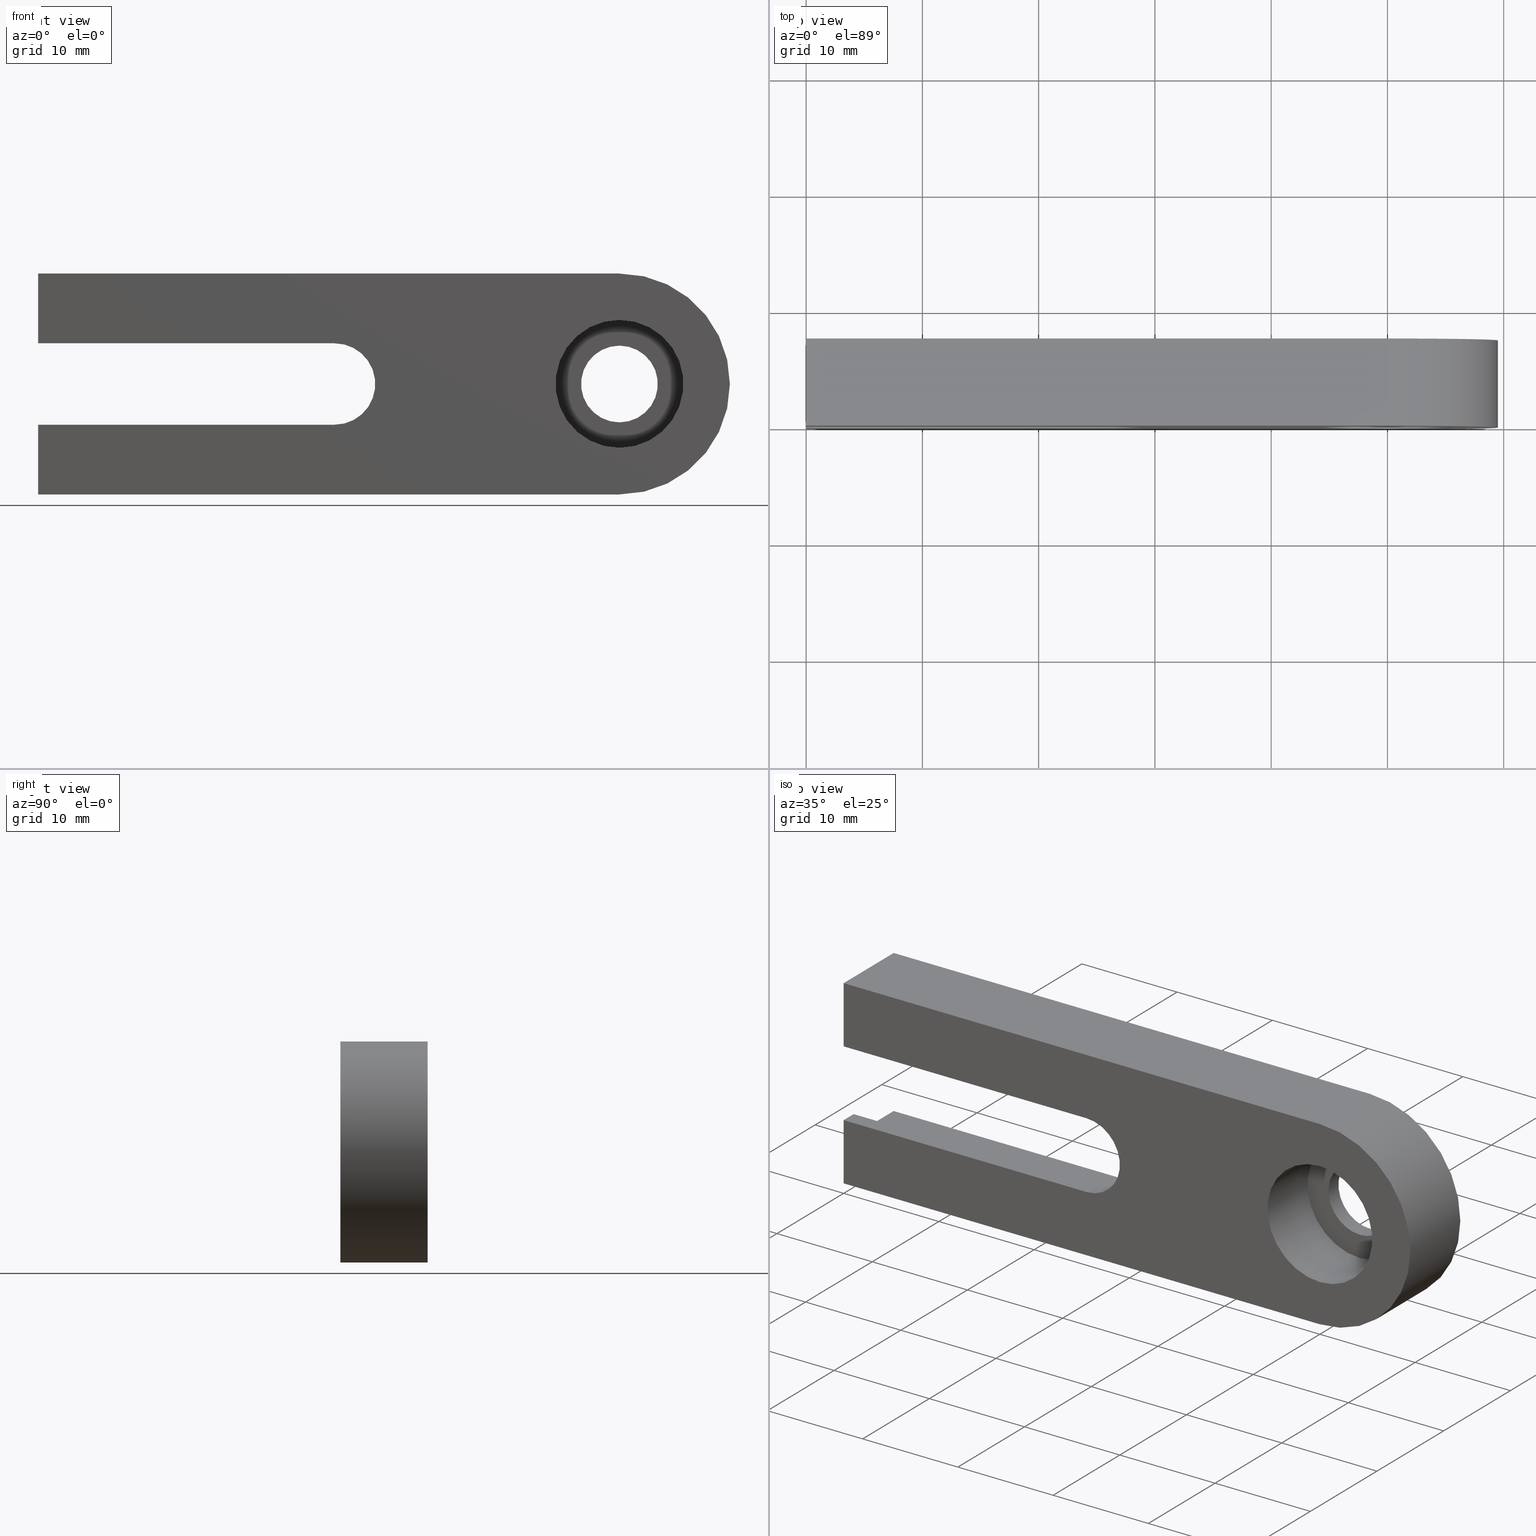
[diagram: canonical four-view strip — front | top / right | iso, engineering-drawing reading convention]
A machine part, canonical four-view strip (front | top / right | iso — engineering-drawing reading convention). The complete STEP part file that produces these views, byte-faithful:
ISO-10303-21;
HEADER;
FILE_DESCRIPTION (( 'STEP AP203' ),
    '1' );
FILE_NAME ('52SDB-5(M).STEP',
    '2016-04-28T06:39:20',
    ( '' ),
    ( '' ),
    'SwSTEP 2.0',
    'SolidWorks 2016',
    '' );
FILE_SCHEMA (( 'CONFIG_CONTROL_DESIGN' ));
ENDSEC;

DATA;
#1 = CARTESIAN_POINT ( 'NONE',  ( -24.49999999999999600, 0.0000000000000000000, 3.469446951953614200E-015 ) ) ;
#2 = EDGE_CURVE ( 'NONE', #190, #643, #219, .T. ) ;
#3 = VERTEX_POINT ( 'NONE', #212 ) ;
#4 = CARTESIAN_POINT ( 'NONE',  ( 0.0000000000000000000, 0.0000000000000000000, 9.500000000000000000 ) ) ;
#5 = CARTESIAN_POINT ( 'NONE',  ( -24.49999999999999600, 0.0000000000000000000, -3.500000000000000000 ) ) ;
#6 = CYLINDRICAL_SURFACE ( 'NONE', #172, 3.299999999999998900 ) ;
#7 = FACE_OUTER_BOUND ( 'NONE', #413, .T. ) ;
#8 = CARTESIAN_POINT ( 'NONE',  ( -24.49999999999999600, 0.0000000000000000000, -3.500000000000000000 ) ) ;
#9 = APPLICATION_CONTEXT ( 'configuration controlled 3d designs of mechanical parts and assemblies' ) ;
#10 = ORIENTED_EDGE ( 'NONE', *, *, #412, .T. ) ;
#11 = DIRECTION ( 'NONE',  ( 0.0000000000000000000, -0.0000000000000000000, 1.000000000000000000 ) ) ;
#12 = DIRECTION ( 'NONE',  ( -1.000000000000000000, 0.0000000000000000000, 2.380993006242676300E-016 ) ) ;
#13 = ORIENTED_EDGE ( 'NONE', *, *, #491, .F. ) ;
#14 = EDGE_CURVE ( 'NONE', #119, #366, #376, .T. ) ;
#15 = DIRECTION ( 'NONE',  ( -0.0000000000000000000, -1.000000000000000000, -0.0000000000000000000 ) ) ;
#16 = CARTESIAN_POINT ( 'NONE',  ( -49.99999999999999300, 0.0000000000000000000, 9.500000000000000000 ) ) ;
#17 = CARTESIAN_POINT ( 'NONE',  ( 0.0000000000000000000, 4.336808689942017700E-016, 0.0000000000000000000 ) ) ;
#18 = ORIENTED_EDGE ( 'NONE', *, *, #426, .T. ) ;
#19 = EDGE_LOOP ( 'NONE', ( #536, #10, #553, #422, #135, #131 ) ) ;
#20 = EDGE_LOOP ( 'NONE', ( #585, #206, #526, #145 ) ) ;
#21 = DIRECTION ( 'NONE',  ( 1.000000000000000000, 0.0000000000000000000, -0.0000000000000000000 ) ) ;
#22 = EDGE_LOOP ( 'NONE', ( #537, #581 ) ) ;
#23 = FACE_OUTER_BOUND ( 'NONE', #430, .T. ) ;
#24 = FACE_BOUND ( 'NONE', #284, .T. ) ;
#25 = DIRECTION ( 'NONE',  ( 0.0000000000000000000, 0.0000000000000000000, -1.000000000000000000 ) ) ;
#26 = EDGE_CURVE ( 'NONE', #366, #91, #338, .T. ) ;
#27 = ORIENTED_EDGE ( 'NONE', *, *, #482, .F. ) ;
#28 = CARTESIAN_POINT ( 'NONE',  ( 0.0000000000000000000, 0.0000000000000000000, 0.0000000000000000000 ) ) ;
#29 = ORIENTED_EDGE ( 'NONE', *, *, #434, .T. ) ;
#30 = DIRECTION ( 'NONE',  ( 0.0000000000000000000, 1.000000000000000000, 0.0000000000000000000 ) ) ;
#31 = CARTESIAN_POINT ( 'NONE',  ( 0.0000000000000000000, 0.0000000000000000000, 0.0000000000000000000 ) ) ;
#32 = LINE ( 'NONE', #106, #437 ) ;
#33 = FACE_OUTER_BOUND ( 'NONE', #273, .T. ) ;
#34 = ADVANCED_FACE ( 'NONE', ( #256 ), #615, .F. ) ;
#35 = CARTESIAN_POINT ( 'NONE',  ( 0.0000000000000000000, 7.500000000000000000, -9.500000000000000000 ) ) ;
#36 = ADVANCED_FACE ( 'NONE', ( #68 ), #107, .F. ) ;
#37 = ORIENTED_EDGE ( 'NONE', *, *, #252, .T. ) ;
#38 = LOCAL_TIME ( 14, 39, 20.00000000000000000, #379 ) ;
#39 = CARTESIAN_POINT ( 'NONE',  ( -49.99999999999999300, 7.500000000000000000, -9.500000000000000000 ) ) ;
#40 = EDGE_CURVE ( 'NONE', #119, #425, #355, .T. ) ;
#41 = VECTOR ( 'NONE', #406, 1000.000000000000000 ) ;
#42 = DIRECTION ( 'NONE',  ( -0.0000000000000000000, -1.000000000000000000, -0.0000000000000000000 ) ) ;
#43 = VERTEX_POINT ( 'NONE', #568 ) ;
#44 = ORIENTED_EDGE ( 'NONE', *, *, #482, .T. ) ;
#45 = DIRECTION ( 'NONE',  ( -0.0000000000000000000, 1.000000000000000000, -0.0000000000000000000 ) ) ;
#46 = AXIS2_PLACEMENT_3D ( 'NONE', #83, #447, #654 ) ;
#47 = ORIENTED_EDGE ( 'NONE', *, *, #163, .T. ) ;
#48 = LINE ( 'NONE', #651, #589 ) ;
#49 = LINE ( 'NONE', #84, #635 ) ;
#50 = CARTESIAN_POINT ( 'NONE',  ( 0.0000000000000000000, 7.500000000000000000, 9.500000000000000000 ) ) ;
#51 = EDGE_CURVE ( 'NONE', #643, #361, #363, .T. ) ;
#52 = ADVANCED_BREP_SHAPE_REPRESENTATION ( '52SDB-5(M)', ( #216, #544 ), #240 ) ;
#53 = CARTESIAN_POINT ( 'NONE',  ( -24.49999999999999600, 1.499999999999999600, 3.469446951953614200E-015 ) ) ;
#54 = DIRECTION ( 'NONE',  ( -1.000000000000000000, 0.0000000000000000000, 2.380993006242676300E-016 ) ) ;
#55 = CARTESIAN_POINT ( 'NONE',  ( -24.49999999999999600, 1.499999999999999600, -5.500000000000000000 ) ) ;
#56 = COORDINATED_UNIVERSAL_TIME_OFFSET ( 8, 0, .AHEAD. ) ;
#57 = LINE ( 'NONE', #251, #547 ) ;
#58 = DIRECTION ( 'NONE',  ( 0.0000000000000000000, 0.0000000000000000000, -1.000000000000000000 ) ) ;
#59 = CARTESIAN_POINT ( 'NONE',  ( -49.99999999999999300, 0.0000000000000000000, -3.499999999999993800 ) ) ;
#60 = DIRECTION ( 'NONE',  ( 0.0000000000000000000, -0.0000000000000000000, 1.000000000000000000 ) ) ;
#61 = DIRECTION ( 'NONE',  ( 0.0000000000000000000, 0.0000000000000000000, 1.000000000000000000 ) ) ;
#62 = DATE_TIME_ROLE ( 'creation_date' ) ;
#63 = EDGE_CURVE ( 'NONE', #102, #652, #374, .T. ) ;
#64 = ORIENTED_EDGE ( 'NONE', *, *, #40, .F. ) ;
#65 = DIRECTION ( 'NONE',  ( 1.000000000000000000, 0.0000000000000000000, 0.0000000000000000000 ) ) ;
#66 = CIRCLE ( 'NONE', #634, 5.500000000000000000 ) ;
#67 = ORIENTED_EDGE ( 'NONE', *, *, #163, .F. ) ;
#68 = FACE_OUTER_BOUND ( 'NONE', #286, .T. ) ;
#69 = AXIS2_PLACEMENT_3D ( 'NONE', #346, #281, #189 ) ;
#70 = APPROVAL_PERSON_ORGANIZATION ( #200, #440, #365 ) ;
#71 = EDGE_CURVE ( 'NONE', #345, #138, #271, .T. ) ;
#72 = CARTESIAN_POINT ( 'NONE',  ( -49.99999999999999300, 0.0000000000000000000, 3.500000000000006200 ) ) ;
#73 = CARTESIAN_POINT ( 'NONE',  ( 6.735557395310442000E-016, 6.000000000000000000, 5.500000000000000000 ) ) ;
#74 = AXIS2_PLACEMENT_3D ( 'NONE', #504, #296, #249 ) ;
#75 = CARTESIAN_POINT ( 'NONE',  ( -24.49999999999999600, 1.499999999999999600, 5.500000000000006200 ) ) ;
#76 = CYLINDRICAL_SURFACE ( 'NONE', #606, 5.500000000000003600 ) ;
#77 = ADVANCED_FACE ( 'NONE', ( #116 ), #523, .F. ) ;
#78 = FACE_OUTER_BOUND ( 'NONE', #486, .T. ) ;
#79 = PLANE ( 'NONE',  #622 ) ;
#80 = ADVANCED_FACE ( 'NONE', ( #657 ), #225, .T. ) ;
#81 = VECTOR ( 'NONE', #554, 1000.000000000000000 ) ;
#82 = DIRECTION ( 'NONE',  ( 1.000000000000000000, 0.0000000000000000000, 0.0000000000000000000 ) ) ;
#83 = CARTESIAN_POINT ( 'NONE',  ( 0.0000000000000000000, 7.499999999999999100, 0.0000000000000000000 ) ) ;
#84 = CARTESIAN_POINT ( 'NONE',  ( 0.0000000000000000000, 0.0000000000000000000, -5.500000000000000000 ) ) ;
#85 = EDGE_CURVE ( 'NONE', #457, #277, #49, .T. ) ;
#86 = DIRECTION ( 'NONE',  ( -1.000000000000000000, 0.0000000000000000000, 2.380993006242676300E-016 ) ) ;
#87 = LINE ( 'NONE', #546, #382 ) ;
#88 = CC_DESIGN_PERSON_AND_ORGANIZATION_ASSIGNMENT ( #623, #511, ( #380 ) ) ;
#89 = UNCERTAINTY_MEASURE_WITH_UNIT (LENGTH_MEASURE( 1.000000000000000100E-005 ), #612, 'distance_accuracy_value', 'NONE');
#90 = ORIENTED_EDGE ( 'NONE', *, *, #386, .T. ) ;
#91 = VERTEX_POINT ( 'NONE', #435 ) ;
#92 = ORIENTED_EDGE ( 'NONE', *, *, #587, .T. ) ;
#93 = DIRECTION ( 'NONE',  ( 0.0000000000000000000, 0.0000000000000000000, -1.000000000000000000 ) ) ;
#94 = ORIENTED_EDGE ( 'NONE', *, *, #289, .T. ) ;
#95 = CARTESIAN_POINT ( 'NONE',  ( -49.99999999999999300, 7.500000000000000000, 9.500000000000000000 ) ) ;
#96 = EDGE_LOOP ( 'NONE', ( #237, #218, #258, #463 ) ) ;
#97 = DIRECTION ( 'NONE',  ( 0.0000000000000000000, -0.0000000000000000000, 1.000000000000000000 ) ) ;
#98 = CARTESIAN_POINT ( 'NONE',  ( -49.99999999999999300, 0.0000000000000000000, 9.500000000000000000 ) ) ;
#99 = FACE_BOUND ( 'NONE', #22, .T. ) ;
#100 = AXIS2_PLACEMENT_3D ( 'NONE', #109, #558, #60 ) ;
#101 = CARTESIAN_POINT ( 'NONE',  ( 0.0000000000000000000, 0.0000000000000000000, 0.0000000000000000000 ) ) ;
#102 = VERTEX_POINT ( 'NONE', #73 ) ;
#103 = CARTESIAN_POINT ( 'NONE',  ( -49.99999999999999300, 1.499999999999999600, 3.500000000000006200 ) ) ;
#104 = ORIENTED_EDGE ( 'NONE', *, *, #2, .F. ) ;
#105 = CARTESIAN_POINT ( 'NONE',  ( 0.0000000000000000000, 7.500000000000000000, 0.0000000000000000000 ) ) ;
#106 = CARTESIAN_POINT ( 'NONE',  ( -49.99999999999999300, 7.500000000000000000, 9.500000000000000000 ) ) ;
#107 = PLANE ( 'NONE',  #246 ) ;
#108 = CIRCLE ( 'NONE', #343, 3.299999999999998500 ) ;
#109 = CARTESIAN_POINT ( 'NONE',  ( 3.299999999999998900, 6.000000000000000000, 0.0000000000000000000 ) ) ;
#110 = DIRECTION ( 'NONE',  ( 0.0000000000000000000, 0.0000000000000000000, -1.000000000000000000 ) ) ;
#111 = ORIENTED_EDGE ( 'NONE', *, *, #14, .T. ) ;
#112 = EDGE_CURVE ( 'NONE', #178, #415, #239, .T. ) ;
#113 = ORIENTED_EDGE ( 'NONE', *, *, #51, .F. ) ;
#114 = CARTESIAN_POINT ( 'NONE',  ( 0.0000000000000000000, 6.000000000000000000, -5.500000000000000000 ) ) ;
#115 = CARTESIAN_POINT ( 'NONE',  ( -49.99999999999999300, 7.500000000000000000, -9.500000000000000000 ) ) ;
#116 = FACE_OUTER_BOUND ( 'NONE', #179, .T. ) ;
#117 = VERTEX_POINT ( 'NONE', #232 ) ;
#118 = ORIENTED_EDGE ( 'NONE', *, *, #85, .F. ) ;
#119 = VERTEX_POINT ( 'NONE', #498 ) ;
#120 = ORIENTED_EDGE ( 'NONE', *, *, #613, .T. ) ;
#121 = PERSON_AND_ORGANIZATION ( #174, #229 ) ;
#122 = LINE ( 'NONE', #393, #182 ) ;
#123 = CIRCLE ( 'NONE', #46, 3.299999999999998500 ) ;
#124 = EDGE_CURVE ( 'NONE', #611, #306, #295, .T. ) ;
#125 = DIRECTION ( 'NONE',  ( 0.0000000000000000000, 1.000000000000000000, 0.0000000000000000000 ) ) ;
#126 = PRODUCT_DEFINITION_FORMATION_WITH_SPECIFIED_SOURCE ( 'ANY', '', #202, .NOT_KNOWN. ) ;
#127 = ORIENTED_EDGE ( 'NONE', *, *, #599, .T. ) ;
#128 = ADVANCED_FACE ( 'NONE', ( #524 ), #543, .F. ) ;
#129 = AXIS2_PLACEMENT_3D ( 'NONE', #181, #586, #383 ) ;
#130 = AXIS2_PLACEMENT_3D ( 'NONE', #312, #155, #621 ) ;
#131 = ORIENTED_EDGE ( 'NONE', *, *, #266, .T. ) ;
#132 = LOCAL_TIME ( 14, 39, 20.00000000000000000, #253 ) ;
#133 = LINE ( 'NONE', #196, #582 ) ;
#134 = CARTESIAN_POINT ( 'NONE',  ( 0.0000000000000000000, 6.000000000000000000, 0.0000000000000000000 ) ) ;
#135 = ORIENTED_EDGE ( 'NONE', *, *, #112, .T. ) ;
#136 = AXIS2_PLACEMENT_3D ( 'NONE', #134, #545, #352 ) ;
#137 = DIRECTION ( 'NONE',  ( 0.0000000000000000000, 1.000000000000000000, 0.0000000000000000000 ) ) ;
#138 = VERTEX_POINT ( 'NONE', #332 ) ;
#139 = PLANE ( 'NONE',  #199 ) ;
#140 = EDGE_CURVE ( 'NONE', #190, #119, #388, .T. ) ;
#141 = CALENDAR_DATE ( 2016, 28, 4 ) ;
#142 = DIRECTION ( 'NONE',  ( -1.000000000000000000, 0.0000000000000000000, -0.0000000000000000000 ) ) ;
#143 = CYLINDRICAL_SURFACE ( 'NONE', #519, 5.500000000000000000 ) ;
#144 = DIRECTION ( 'NONE',  ( -0.0000000000000000000, 0.0000000000000000000, 1.000000000000000000 ) ) ;
#145 = ORIENTED_EDGE ( 'NONE', *, *, #185, .F. ) ;
#146 = CARTESIAN_POINT ( 'NONE',  ( -24.49999999999999600, 1.499999999999999600, 3.469446951953614200E-015 ) ) ;
#147 = ORIENTED_EDGE ( 'NONE', *, *, #502, .F. ) ;
#148 = CARTESIAN_POINT ( 'NONE',  ( 4.041334437186264000E-016, 7.499999999999999100, 3.299999999999998500 ) ) ;
#149 = VERTEX_POINT ( 'NONE', #632 ) ;
#150 = DIRECTION ( 'NONE',  ( -1.000000000000000000, -0.0000000000000000000, -0.0000000000000000000 ) ) ;
#151 = CARTESIAN_POINT ( 'NONE',  ( 0.0000000000000000000, 6.000000000000000000, 0.0000000000000000000 ) ) ;
#152 = CARTESIAN_POINT ( 'NONE',  ( -49.99999999999999300, 0.0000000000000000000, -9.500000000000000000 ) ) ;
#153 = PERSON_AND_ORGANIZATION ( #174, #229 ) ;
#154 = LINE ( 'NONE', #459, #381 ) ;
#155 = DIRECTION ( 'NONE',  ( -0.0000000000000000000, -1.000000000000000000, -0.0000000000000000000 ) ) ;
#156 = AXIS2_PLACEMENT_3D ( 'NONE', #648, #455, #403 ) ;
#157 = LINE ( 'NONE', #55, #530 ) ;
#158 = DIRECTION ( 'NONE',  ( -2.380993006242676300E-016, 0.0000000000000000000, -1.000000000000000000 ) ) ;
#159 = APPROVAL_ROLE ( '' ) ;
#160 = CARTESIAN_POINT ( 'NONE',  ( -24.49999999999999600, 7.500000000000000000, -5.500000000000000000 ) ) ;
#161 = EDGE_LOOP ( 'NONE', ( #629, #170, #617, #269, #120, #478, #94, #373 ) ) ;
#162 = DIRECTION ( 'NONE',  ( 1.000000000000000000, 0.0000000000000000000, 0.0000000000000000000 ) ) ;
#163 = EDGE_CURVE ( 'NONE', #469, #490, #540, .T. ) ;
#164 = ORIENTED_EDGE ( 'NONE', *, *, #85, .T. ) ;
#165 = CC_DESIGN_SECURITY_CLASSIFICATION ( #580, ( #126 ) ) ;
#166 = CARTESIAN_POINT ( 'NONE',  ( -24.49999999999999600, 1.499999999999999600, -3.500000000000000000 ) ) ;
#167 = DIRECTION ( 'NONE',  ( -0.0000000000000000000, -1.000000000000000000, -0.0000000000000000000 ) ) ;
#168 = LINE ( 'NONE', #309, #565 ) ;
#169 = LINE ( 'NONE', #533, #411 ) ;
#170 = ORIENTED_EDGE ( 'NONE', *, *, #555, .T. ) ;
#171 = ORIENTED_EDGE ( 'NONE', *, *, #434, .F. ) ;
#172 = AXIS2_PLACEMENT_3D ( 'NONE', #476, #15, #222 ) ;
#173 = ORIENTED_EDGE ( 'NONE', *, *, #525, .F. ) ;
#174 = PERSON ( 'UNSPECIFIED', 'UNSPECIFIED', 'UNSPECIFIED', ('UNSPECIFIED'), ('UNSPECIFIED'), ('UNSPECIFIED') ) ;
#175 = PERSON_AND_ORGANIZATION ( #174, #229 ) ;
#176 = EDGE_CURVE ( 'NONE', #361, #43, #254, .T. ) ;
#177 = CC_DESIGN_PERSON_AND_ORGANIZATION_ASSIGNMENT ( #614, #205, ( #126 ) ) ;
#178 = VERTEX_POINT ( 'NONE', #583 ) ;
#179 = EDGE_LOOP ( 'NONE', ( #127, #235, #340, #512 ) ) ;
#180 = DIRECTION ( 'NONE',  ( 0.0000000000000000000, 0.0000000000000000000, 1.000000000000000000 ) ) ;
#181 = CARTESIAN_POINT ( 'NONE',  ( -24.49999999999999600, 7.500000000000000000, 3.469446951953614200E-015 ) ) ;
#182 = VECTOR ( 'NONE', #45, 1000.000000000000000 ) ;
#183 = ADVANCED_FACE ( 'NONE', ( #642 ), #485, .F. ) ;
#184 = FACE_OUTER_BOUND ( 'NONE', #661, .T. ) ;
#185 = EDGE_CURVE ( 'NONE', #473, #276, #169, .T. ) ;
#186 = COORDINATED_UNIVERSAL_TIME_OFFSET ( 8, 0, .AHEAD. ) ;
#187 = VECTOR ( 'NONE', #541, 1000.000000000000000 ) ;
#188 = AXIS2_PLACEMENT_3D ( 'NONE', #247, #659, #448 ) ;
#189 = DIRECTION ( 'NONE',  ( 0.0000000000000000000, 0.0000000000000000000, 1.000000000000000000 ) ) ;
#190 = VERTEX_POINT ( 'NONE', #395 ) ;
#191 = EDGE_CURVE ( 'NONE', #560, #619, #336, .T. ) ;
#192 = CARTESIAN_POINT ( 'NONE',  ( 0.0000000000000000000, 4.336808689942017700E-016, -5.500000000000000000 ) ) ;
#193 = CC_DESIGN_DATE_AND_TIME_ASSIGNMENT ( #404, #304, ( #580 ) ) ;
#194 = VECTOR ( 'NONE', #461, 1000.000000000000000 ) ;
#195 = LINE ( 'NONE', #250, #396 ) ;
#196 = CARTESIAN_POINT ( 'NONE',  ( -49.99999999999999300, 0.0000000000000000000, -3.499999999999993800 ) ) ;
#197 = CARTESIAN_POINT ( 'NONE',  ( -24.49999999999999600, 1.499999999999999600, -5.500000000000000000 ) ) ;
#198 =( NAMED_UNIT ( * ) PLANE_ANGLE_UNIT ( ) SI_UNIT ( $, .RADIAN. ) );
#199 = AXIS2_PLACEMENT_3D ( 'NONE', #197, #552, #54 ) ;
#200 = PERSON_AND_ORGANIZATION ( #174, #229 ) ;
#201 = DIRECTION ( 'NONE',  ( -0.0000000000000000000, -1.000000000000000000, -0.0000000000000000000 ) ) ;
#202 = PRODUCT ( '52SDB-5(M)', '52SDB-5(M)', '', ( #209 ) ) ;
#203 = ORIENTED_EDGE ( 'NONE', *, *, #140, .T. ) ;
#204 = CARTESIAN_POINT ( 'NONE',  ( 0.0000000000000000000, 7.500000000000000000, 0.0000000000000000000 ) ) ;
#205 = PERSON_AND_ORGANIZATION_ROLE ( 'design_supplier' ) ;
#206 = ORIENTED_EDGE ( 'NONE', *, *, #491, .T. ) ;
#207 = ORIENTED_EDGE ( 'NONE', *, *, #587, .F. ) ;
#208 = CARTESIAN_POINT ( 'NONE',  ( -49.99999999999999300, 7.500000000000000000, 5.500000000000006200 ) ) ;
#209 = MECHANICAL_CONTEXT ( 'NONE', #319, 'mechanical' ) ;
#210 = ORIENTED_EDGE ( 'NONE', *, *, #638, .T. ) ;
#211 = CARTESIAN_POINT ( 'NONE',  ( -24.49999999999999600, 1.499999999999999600, 3.500000000000006700 ) ) ;
#212 = CARTESIAN_POINT ( 'NONE',  ( -49.99999999999999300, 1.499999999999999600, 5.500000000000006200 ) ) ;
#213 = CALENDAR_DATE ( 2016, 28, 4 ) ;
#214 = FACE_OUTER_BOUND ( 'NONE', #308, .T. ) ;
#215 = VECTOR ( 'NONE', #520, 1000.000000000000000 ) ;
#216 = MANIFOLD_SOLID_BREP ( '����3', #618 ) ;
#217 = CARTESIAN_POINT ( 'NONE',  ( 0.0000000000000000000, 6.000000000000000000, 0.0000000000000000000 ) ) ;
#218 = ORIENTED_EDGE ( 'NONE', *, *, #266, .F. ) ;
#219 = LINE ( 'NONE', #152, #81 ) ;
#220 = EDGE_CURVE ( 'NONE', #652, #277, #508, .T. ) ;
#221 = EDGE_LOOP ( 'NONE', ( #207, #67, #173, #283, #371, #496, #210, #408 ) ) ;
#222 = DIRECTION ( 'NONE',  ( 0.0000000000000000000, 0.0000000000000000000, -1.000000000000000000 ) ) ;
#223 = CARTESIAN_POINT ( 'NONE',  ( -49.99999999999999300, 7.500000000000000000, -9.500000000000000000 ) ) ;
#224 = LOCAL_TIME ( 14, 39, 20.00000000000000000, #56 ) ;
#225 = PLANE ( 'NONE',  #367 ) ;
#226 = LINE ( 'NONE', #539, #350 ) ;
#227 = ADVANCED_FACE ( 'NONE', ( #99, #535 ), #79, .F. ) ;
#228 = EDGE_LOOP ( 'NONE', ( #650, #64, #571, #282 ) ) ;
#229 = ORGANIZATION ( 'UNSPECIFIED', 'UNSPECIFIED', '' ) ;
#230 = LINE ( 'NONE', #160, #293 ) ;
#231 = CIRCLE ( 'NONE', #449, 3.500000000000003100 ) ;
#232 = CARTESIAN_POINT ( 'NONE',  ( -49.99999999999999300, 1.499999999999999600, -5.499999999999993800 ) ) ;
#233 = ORIENTED_EDGE ( 'NONE', *, *, #502, .T. ) ;
#234 = ORIENTED_EDGE ( 'NONE', *, *, #51, .T. ) ;
#235 = ORIENTED_EDGE ( 'NONE', *, *, #297, .F. ) ;
#236 = CARTESIAN_POINT ( 'NONE',  ( 0.0000000000000000000, 0.0000000000000000000, 0.0000000000000000000 ) ) ;
#237 = ORIENTED_EDGE ( 'NONE', *, *, #420, .F. ) ;
#238 = ADVANCED_FACE ( 'NONE', ( #499 ), #255, .F. ) ;
#239 = LINE ( 'NONE', #378, #245 ) ;
#240 =( GEOMETRIC_REPRESENTATION_CONTEXT ( 3 ) GLOBAL_UNCERTAINTY_ASSIGNED_CONTEXT ( ( #89 ) ) GLOBAL_UNIT_ASSIGNED_CONTEXT ( ( #612, #198, #262 ) ) REPRESENTATION_CONTEXT ( 'NONE', 'WORKASPACE' ) );
#241 = ORIENTED_EDGE ( 'NONE', *, *, #525, .T. ) ;
#242 = CARTESIAN_POINT ( 'NONE',  ( -49.99999999999999300, 1.499999999999999600, 5.500000000000006200 ) ) ;
#243 = EDGE_LOOP ( 'NONE', ( #111, #18, #601, #398, #267, #113, #104, #203 ) ) ;
#244 = VECTOR ( 'NONE', #86, 1000.000000000000000 ) ;
#245 = VECTOR ( 'NONE', #532, 1000.000000000000000 ) ;
#246 = AXIS2_PLACEMENT_3D ( 'NONE', #369, #65, #110 ) ;
#247 = CARTESIAN_POINT ( 'NONE',  ( 0.0000000000000000000, 7.500000000000000000, 0.0000000000000000000 ) ) ;
#248 = ORIENTED_EDGE ( 'NONE', *, *, #514, .T. ) ;
#249 = DIRECTION ( 'NONE',  ( 1.000000000000000000, 0.0000000000000000000, 0.0000000000000000000 ) ) ;
#250 = CARTESIAN_POINT ( 'NONE',  ( 0.0000000000000000000, 7.500000000000000000, -9.500000000000000000 ) ) ;
#251 = CARTESIAN_POINT ( 'NONE',  ( -49.99999999999999300, 7.500000000000000000, 9.500000000000000000 ) ) ;
#252 = EDGE_CURVE ( 'NONE', #611, #469, #492, .T. ) ;
#253 = COORDINATED_UNIVERSAL_TIME_OFFSET ( 8, 0, .AHEAD. ) ;
#254 = CIRCLE ( 'NONE', #538, 9.500000000000000000 ) ;
#255 = PLANE ( 'NONE',  #322 ) ;
#256 = FACE_OUTER_BOUND ( 'NONE', #96, .T. ) ;
#257 = PLANE ( 'NONE',  #331 ) ;
#258 = ORIENTED_EDGE ( 'NONE', *, *, #426, .F. ) ;
#259 = APPLICATION_PROTOCOL_DEFINITION ( 'international standard', 'config_control_design', 1994, #319 ) ;
#260 = CARTESIAN_POINT ( 'NONE',  ( -49.99999999999999300, 1.499999999999999600, -5.499999999999993800 ) ) ;
#261 = DATE_AND_TIME ( #513, #270 ) ;
#262 =( NAMED_UNIT ( * ) SI_UNIT ( $, .STERADIAN. ) SOLID_ANGLE_UNIT ( ) );
#263 = CIRCLE ( 'NONE', #561, 5.500000000000000000 ) ;
#264 = DIRECTION ( 'NONE',  ( -1.000000000000000000, -0.0000000000000000000, 2.380993006242676300E-016 ) ) ;
#265 = EDGE_LOOP ( 'NONE', ( #241, #285, #431, #233 ) ) ;
#266 = EDGE_CURVE ( 'NONE', #415, #149, #133, .T. ) ;
#267 = ORIENTED_EDGE ( 'NONE', *, *, #176, .F. ) ;
#268 = CARTESIAN_POINT ( 'NONE',  ( 6.735557395310442000E-016, 0.0000000000000000000, 5.500000000000000000 ) ) ;
#269 = ORIENTED_EDGE ( 'NONE', *, *, #626, .T. ) ;
#270 = LOCAL_TIME ( 14, 39, 20.00000000000000000, #186 ) ;
#271 = LINE ( 'NONE', #115, #360 ) ;
#272 = DIRECTION ( 'NONE',  ( 1.000000000000000000, 0.0000000000000000000, 0.0000000000000000000 ) ) ;
#273 = EDGE_LOOP ( 'NONE', ( #487, #474, #577, #497 ) ) ;
#274 = VERTEX_POINT ( 'NONE', #148 ) ;
#275 = ORIENTED_EDGE ( 'NONE', *, *, #527, .F. ) ;
#276 = VERTEX_POINT ( 'NONE', #450 ) ;
#277 = VERTEX_POINT ( 'NONE', #192 ) ;
#278 = APPROVAL_DATE_TIME ( #574, #440 ) ;
#279 = LINE ( 'NONE', #103, #41 ) ;
#280 = VECTOR ( 'NONE', #298, 1000.000000000000000 ) ;
#281 = DIRECTION ( 'NONE',  ( 0.0000000000000000000, 1.000000000000000000, 0.0000000000000000000 ) ) ;
#282 = ORIENTED_EDGE ( 'NONE', *, *, #551, .T. ) ;
#283 = ORIENTED_EDGE ( 'NONE', *, *, #71, .T. ) ;
#284 = EDGE_LOOP ( 'NONE', ( #390, #377 ) ) ;
#285 = ORIENTED_EDGE ( 'NONE', *, *, #252, .F. ) ;
#286 = EDGE_LOOP ( 'NONE', ( #290, #147, #391, #477, #333, #592 ) ) ;
#287 = DIRECTION ( 'NONE',  ( 1.000000000000000000, 0.0000000000000000000, 0.0000000000000000000 ) ) ;
#288 = CIRCLE ( 'NONE', #594, 5.500000000000000000 ) ;
#289 = EDGE_CURVE ( 'NONE', #91, #425, #231, .T. ) ;
#290 = ORIENTED_EDGE ( 'NONE', *, *, #71, .F. ) ;
#291 = CC_DESIGN_PERSON_AND_ORGANIZATION_ASSIGNMENT ( #121, #517, ( #126 ) ) ;
#292 = DIRECTION ( 'NONE',  ( -0.0000000000000000000, -0.0000000000000000000, 1.000000000000000000 ) ) ;
#293 = VECTOR ( 'NONE', #462, 1000.000000000000000 ) ;
#294 = PRODUCT_DEFINITION_SHAPE ( 'NONE', 'NONE',  #380 ) ;
#295 = CIRCLE ( 'NONE', #69, 5.500000000000003600 ) ;
#296 = DIRECTION ( 'NONE',  ( -0.0000000000000000000, 0.0000000000000000000, 1.000000000000000000 ) ) ;
#297 = EDGE_CURVE ( 'NONE', #432, #178, #87, .T. ) ;
#298 = DIRECTION ( 'NONE',  ( -0.0000000000000000000, 1.000000000000000000, -0.0000000000000000000 ) ) ;
#299 = CARTESIAN_POINT ( 'NONE',  ( -24.49999999999999600, 7.500000000000000000, -5.500000000000000000 ) ) ;
#300 = CARTESIAN_POINT ( 'NONE',  ( 4.041334437186264500E-016, 6.000000000000000000, 3.299999999999998900 ) ) ;
#301 = VECTOR ( 'NONE', #424, 1000.000000000000000 ) ;
#302 = PRODUCT_RELATED_PRODUCT_CATEGORY ( 'detail', '', ( #202 ) ) ;
#303 = DIRECTION ( 'NONE',  ( -0.0000000000000000000, -1.000000000000000000, -0.0000000000000000000 ) ) ;
#304 = DATE_TIME_ROLE ( 'classification_date' ) ;
#305 = VERTEX_POINT ( 'NONE', #510 ) ;
#306 = VERTEX_POINT ( 'NONE', #595 ) ;
#307 = PERSON_AND_ORGANIZATION_ROLE ( 'classification_officer' ) ;
#308 = EDGE_LOOP ( 'NONE', ( #47, #357, #439, #37 ) ) ;
#309 = CARTESIAN_POINT ( 'NONE',  ( -49.99999999999999300, 1.499999999999999600, -3.499999999999993800 ) ) ;
#310 = AXIS2_PLACEMENT_3D ( 'NONE', #59, #158, #12 ) ;
#311 = FACE_OUTER_BOUND ( 'NONE', #402, .T. ) ;
#312 = CARTESIAN_POINT ( 'NONE',  ( 0.0000000000000000000, 6.000000000000000000, 0.0000000000000000000 ) ) ;
#313 = DIRECTION ( 'NONE',  ( 0.0000000000000000000, 0.0000000000000000000, -1.000000000000000000 ) ) ;
#314 = EDGE_CURVE ( 'NONE', #306, #490, #157, .T. ) ;
#315 = DIRECTION ( 'NONE',  ( -0.0000000000000000000, -1.000000000000000000, -0.0000000000000000000 ) ) ;
#316 = ORIENTED_EDGE ( 'NONE', *, *, #176, .T. ) ;
#317 = CARTESIAN_POINT ( 'NONE',  ( -49.99999999999999300, 1.499999999999999600, 3.500000000000006200 ) ) ;
#318 = VERTEX_POINT ( 'NONE', #300 ) ;
#319 = APPLICATION_CONTEXT ( 'configuration controlled 3d designs of mechanical parts and assemblies' ) ;
#320 = DIRECTION ( 'NONE',  ( 0.0000000000000000000, 1.000000000000000000, 0.0000000000000000000 ) ) ;
#321 = DIRECTION ( 'NONE',  ( -0.0000000000000000000, 1.000000000000000000, -0.0000000000000000000 ) ) ;
#322 = AXIS2_PLACEMENT_3D ( 'NONE', #349, #144, #507 ) ;
#323 = VECTOR ( 'NONE', #264, 1000.000000000000000 ) ;
#324 = DIRECTION ( 'NONE',  ( -0.0000000000000000000, -1.000000000000000000, -0.0000000000000000000 ) ) ;
#325 = CARTESIAN_POINT ( 'NONE',  ( 0.0000000000000000000, 7.499999999999999100, -3.299999999999998500 ) ) ;
#326 = VERTEX_POINT ( 'NONE', #401 ) ;
#327 = LINE ( 'NONE', #50, #605 ) ;
#328 = DIRECTION ( 'NONE',  ( 0.0000000000000000000, 0.0000000000000000000, 1.000000000000000000 ) ) ;
#329 = EDGE_LOOP ( 'NONE', ( #234, #640, #275, #562 ) ) ;
#330 = DIRECTION ( 'NONE',  ( 0.0000000000000000000, 0.0000000000000000000, -1.000000000000000000 ) ) ;
#331 = AXIS2_PLACEMENT_3D ( 'NONE', #105, #320, #11 ) ;
#332 = CARTESIAN_POINT ( 'NONE',  ( -49.99999999999999300, 7.500000000000000000, 9.500000000000000000 ) ) ;
#333 = ORIENTED_EDGE ( 'NONE', *, *, #2, .T. ) ;
#334 = EDGE_CURVE ( 'NONE', #619, #43, #195, .T. ) ;
#335 = CYLINDRICAL_SURFACE ( 'NONE', #479, 9.500000000000000000 ) ;
#336 = CIRCLE ( 'NONE', #188, 9.500000000000000000 ) ;
#337 = ADVANCED_FACE ( 'NONE', ( #419 ), #356, .F. ) ;
#338 = LINE ( 'NONE', #5, #475 ) ;
#339 = CC_DESIGN_APPROVAL ( #495, ( #380 ) ) ;
#340 = ORIENTED_EDGE ( 'NONE', *, *, #638, .F. ) ;
#341 = APPROVAL_PERSON_ORGANIZATION ( #603, #483, #159 ) ;
#342 = LINE ( 'NONE', #39, #187 ) ;
#343 = AXIS2_PLACEMENT_3D ( 'NONE', #368, #167, #313 ) ;
#344 = ADVANCED_FACE ( 'NONE', ( #24, #7 ), #362, .F. ) ;
#345 = VERTEX_POINT ( 'NONE', #208 ) ;
#346 = CARTESIAN_POINT ( 'NONE',  ( -24.49999999999999600, 1.499999999999999600, 3.469446951953614200E-015 ) ) ;
#347 = CC_DESIGN_PERSON_AND_ORGANIZATION_ASSIGNMENT ( #175, #559, ( #202 ) ) ;
#348 = APPROVAL_DATE_TIME ( #655, #495 ) ;
#349 = CARTESIAN_POINT ( 'NONE',  ( -49.99999999999999300, 1.499999999999999600, 5.500000000000006200 ) ) ;
#350 = VECTOR ( 'NONE', #444, 1000.000000000000000 ) ;
#351 = LINE ( 'NONE', #317, #215 ) ;
#352 = DIRECTION ( 'NONE',  ( 0.0000000000000000000, 0.0000000000000000000, -1.000000000000000000 ) ) ;
#353 = DIRECTION ( 'NONE',  ( 1.000000000000000000, 0.0000000000000000000, 0.0000000000000000000 ) ) ;
#354 = EDGE_LOOP ( 'NONE', ( #44, #407 ) ) ;
#355 = LINE ( 'NONE', #521, #627 ) ;
#356 = PLANE ( 'NONE',  #385 ) ;
#357 = ORIENTED_EDGE ( 'NONE', *, *, #314, .F. ) ;
#358 = EDGE_CURVE ( 'NONE', #425, #326, #351, .T. ) ;
#359 = COORDINATED_UNIVERSAL_TIME_OFFSET ( 8, 0, .AHEAD. ) ;
#360 = VECTOR ( 'NONE', #328, 1000.000000000000000 ) ;
#361 = VERTEX_POINT ( 'NONE', #4 ) ;
#362 = PLANE ( 'NONE',  #100 ) ;
#363 = LINE ( 'NONE', #16, #384 ) ;
#364 = DIRECTION ( 'NONE',  ( 0.0000000000000000000, 0.0000000000000000000, -1.000000000000000000 ) ) ;
#365 = APPROVAL_ROLE ( '' ) ;
#366 = VERTEX_POINT ( 'NONE', #8 ) ;
#367 = AXIS2_PLACEMENT_3D ( 'NONE', #572, #30, #433 ) ;
#368 = CARTESIAN_POINT ( 'NONE',  ( 0.0000000000000000000, 7.499999999999999100, 0.0000000000000000000 ) ) ;
#369 = CARTESIAN_POINT ( 'NONE',  ( -49.99999999999999300, 7.500000000000000000, -9.500000000000000000 ) ) ;
#370 = EDGE_CURVE ( 'NONE', #274, #473, #108, .T. ) ;
#371 = ORIENTED_EDGE ( 'NONE', *, *, #527, .T. ) ;
#372 = DIRECTION ( 'NONE',  ( 0.0000000000000000000, 0.0000000000000000000, 1.000000000000000000 ) ) ;
#373 = ORIENTED_EDGE ( 'NONE', *, *, #358, .T. ) ;
#374 = LINE ( 'NONE', #268, #301 ) ;
#375 = AXIS2_PLACEMENT_3D ( 'NONE', #101, #315, #550 ) ;
#376 = CIRCLE ( 'NONE', #400, 3.500000000000003100 ) ;
#377 = ORIENTED_EDGE ( 'NONE', *, *, #590, .F. ) ;
#378 = CARTESIAN_POINT ( 'NONE',  ( -49.99999999999999300, 0.0000000000000000000, -9.500000000000000000 ) ) ;
#379 = COORDINATED_UNIVERSAL_TIME_OFFSET ( 8, 0, .AHEAD. ) ;
#380 = PRODUCT_DEFINITION ( 'UNKNOWN', '', #126, #564 ) ;
#381 = VECTOR ( 'NONE', #150, 1000.000000000000000 ) ;
#382 = VECTOR ( 'NONE', #505, 1000.000000000000000 ) ;
#383 = DIRECTION ( 'NONE',  ( 0.0000000000000000000, 0.0000000000000000000, 1.000000000000000000 ) ) ;
#384 = VECTOR ( 'NONE', #272, 1000.000000000000000 ) ;
#385 = AXIS2_PLACEMENT_3D ( 'NONE', #95, #454, #142 ) ;
#386 = EDGE_CURVE ( 'NONE', #102, #457, #263, .T. ) ;
#387 = LOCAL_TIME ( 14, 39, 20.00000000000000000, #359 ) ;
#388 = LINE ( 'NONE', #72, #624 ) ;
#389 = ADVANCED_FACE ( 'NONE', ( #78 ), #143, .F. ) ;
#390 = ORIENTED_EDGE ( 'NONE', *, *, #514, .F. ) ;
#391 = ORIENTED_EDGE ( 'NONE', *, *, #578, .F. ) ;
#392 = CALENDAR_DATE ( 2016, 28, 4 ) ;
#393 = CARTESIAN_POINT ( 'NONE',  ( -49.99999999999999300, 1.499999999999999600, 5.500000000000006200 ) ) ;
#394 = LINE ( 'NONE', #242, #443 ) ;
#395 = CARTESIAN_POINT ( 'NONE',  ( -49.99999999999999300, 0.0000000000000000000, 3.500000000000006200 ) ) ;
#396 = VECTOR ( 'NONE', #656, 1000.000000000000000 ) ;
#397 = DIRECTION ( 'NONE',  ( -0.0000000000000000000, 1.000000000000000000, -0.0000000000000000000 ) ) ;
#398 = ORIENTED_EDGE ( 'NONE', *, *, #599, .F. ) ;
#399 = DIRECTION ( 'NONE',  ( 1.000000000000000000, 0.0000000000000000000, 0.0000000000000000000 ) ) ;
#400 = AXIS2_PLACEMENT_3D ( 'NONE', #1, #608, #61 ) ;
#401 = CARTESIAN_POINT ( 'NONE',  ( -49.99999999999999300, 1.499999999999999600, 3.500000000000006200 ) ) ;
#402 = EDGE_LOOP ( 'NONE', ( #92, #573, #591, #625 ) ) ;
#403 = DIRECTION ( 'NONE',  ( 0.0000000000000000000, 0.0000000000000000000, -1.000000000000000000 ) ) ;
#404 = DATE_AND_TIME ( #141, #38 ) ;
#405 = CYLINDRICAL_SURFACE ( 'NONE', #653, 3.500000000000003100 ) ;
#406 = DIRECTION ( 'NONE',  ( 0.0000000000000000000, 0.0000000000000000000, 1.000000000000000000 ) ) ;
#407 = ORIENTED_EDGE ( 'NONE', *, *, #370, .T. ) ;
#408 = ORIENTED_EDGE ( 'NONE', *, *, #493, .T. ) ;
#409 = DIRECTION ( 'NONE',  ( 0.0000000000000000000, 0.0000000000000000000, -1.000000000000000000 ) ) ;
#410 = LINE ( 'NONE', #569, #484 ) ;
#411 = VECTOR ( 'NONE', #488, 1000.000000000000000 ) ;
#412 = EDGE_CURVE ( 'NONE', #117, #305, #597, .T. ) ;
#413 = EDGE_LOOP ( 'NONE', ( #29, #90 ) ) ;
#414 = CARTESIAN_POINT ( 'NONE',  ( 0.0000000000000000000, 0.0000000000000000000, 0.0000000000000000000 ) ) ;
#415 = VERTEX_POINT ( 'NONE', #607 ) ;
#416 = APPROVAL_STATUS ( 'not_yet_approved' ) ;
#417 = DIRECTION ( 'NONE',  ( -0.0000000000000000000, -1.000000000000000000, -0.0000000000000000000 ) ) ;
#418 = DIRECTION ( 'NONE',  ( -0.0000000000000000000, -1.000000000000000000, -0.0000000000000000000 ) ) ;
#419 = FACE_OUTER_BOUND ( 'NONE', #329, .T. ) ;
#420 = EDGE_CURVE ( 'NONE', #149, #91, #616, .T. ) ;
#421 = ORIENTED_EDGE ( 'NONE', *, *, #542, .T. ) ;
#422 = ORIENTED_EDGE ( 'NONE', *, *, #297, .T. ) ;
#423 = ORIENTED_EDGE ( 'NONE', *, *, #386, .F. ) ;
#424 = DIRECTION ( 'NONE',  ( -0.0000000000000000000, -1.000000000000000000, -0.0000000000000000000 ) ) ;
#425 = VERTEX_POINT ( 'NONE', #211 ) ;
#426 = EDGE_CURVE ( 'NONE', #366, #415, #438, .T. ) ;
#427 = ORIENTED_EDGE ( 'NONE', *, *, #63, .F. ) ;
#428 = CYLINDRICAL_SURFACE ( 'NONE', #375, 3.299999999999998900 ) ;
#429 = DIRECTION ( 'NONE',  ( 1.000000000000000000, 0.0000000000000000000, 0.0000000000000000000 ) ) ;
#430 = EDGE_LOOP ( 'NONE', ( #316, #494, #453, #421 ) ) ;
#431 = ORIENTED_EDGE ( 'NONE', *, *, #555, .F. ) ;
#432 = VERTEX_POINT ( 'NONE', #464 ) ;
#433 = DIRECTION ( 'NONE',  ( 0.0000000000000000000, -0.0000000000000000000, 1.000000000000000000 ) ) ;
#434 = EDGE_CURVE ( 'NONE', #457, #102, #66, .T. ) ;
#435 = CARTESIAN_POINT ( 'NONE',  ( -24.49999999999999600, 1.499999999999999600, -3.499999999999999600 ) ) ;
#436 = ADVANCED_FACE ( 'NONE', ( #471, #566 ), #257, .T. ) ;
#437 = VECTOR ( 'NONE', #201, 1000.000000000000000 ) ;
#438 = LINE ( 'NONE', #460, #323 ) ;
#439 = ORIENTED_EDGE ( 'NONE', *, *, #124, .F. ) ;
#440 = APPROVAL ( #609, 'UNSPECIFIED' ) ;
#441 = ADVANCED_FACE ( 'NONE', ( #33 ), #405, .F. ) ;
#442 = SHAPE_DEFINITION_REPRESENTATION ( #294, #52 ) ;
#443 = VECTOR ( 'NONE', #399, 1000.000000000000000 ) ;
#444 = DIRECTION ( 'NONE',  ( -0.0000000000000000000, 1.000000000000000000, -0.0000000000000000000 ) ) ;
#445 = EDGE_LOOP ( 'NONE', ( #427, #171, #164, #593 ) ) ;
#446 = CC_DESIGN_DATE_AND_TIME_ASSIGNMENT ( #506, #62, ( #380 ) ) ;
#447 = DIRECTION ( 'NONE',  ( -0.0000000000000000000, -1.000000000000000000, -0.0000000000000000000 ) ) ;
#448 = DIRECTION ( 'NONE',  ( 0.0000000000000000000, 0.0000000000000000000, 1.000000000000000000 ) ) ;
#449 = AXIS2_PLACEMENT_3D ( 'NONE', #53, #503, #500 ) ;
#450 = CARTESIAN_POINT ( 'NONE',  ( 0.0000000000000000000, 6.000000000000000000, -3.299999999999998900 ) ) ;
#451 = VECTOR ( 'NONE', #472, 1000.000000000000000 ) ;
#452 = CARTESIAN_POINT ( 'NONE',  ( 0.0000000000000000000, 7.500000000000000000, 9.500000000000000000 ) ) ;
#453 = ORIENTED_EDGE ( 'NONE', *, *, #191, .F. ) ;
#454 = DIRECTION ( 'NONE',  ( 0.0000000000000000000, 0.0000000000000000000, -1.000000000000000000 ) ) ;
#455 = DIRECTION ( 'NONE',  ( -0.0000000000000000000, -1.000000000000000000, -0.0000000000000000000 ) ) ;
#456 = APPLICATION_PROTOCOL_DEFINITION ( 'international standard', 'config_control_design', 1994, #9 ) ;
#457 = VERTEX_POINT ( 'NONE', #114 ) ;
#458 = EDGE_CURVE ( 'NONE', #277, #652, #288, .T. ) ;
#459 = CARTESIAN_POINT ( 'NONE',  ( -49.99999999999999300, 0.0000000000000000000, -9.500000000000000000 ) ) ;
#460 = CARTESIAN_POINT ( 'NONE',  ( -49.99999999999999300, 0.0000000000000000000, -3.499999999999993800 ) ) ;
#461 = DIRECTION ( 'NONE',  ( -1.000000000000000000, -0.0000000000000000000, -0.0000000000000000000 ) ) ;
#462 = DIRECTION ( 'NONE',  ( -1.000000000000000000, 0.0000000000000000000, 2.380993006242676300E-016 ) ) ;
#463 = ORIENTED_EDGE ( 'NONE', *, *, #26, .T. ) ;
#464 = CARTESIAN_POINT ( 'NONE',  ( -49.99999999999999300, 7.500000000000000000, -9.500000000000000000 ) ) ;
#465 = DIRECTION ( 'NONE',  ( 0.0000000000000000000, 0.0000000000000000000, 1.000000000000000000 ) ) ;
#466 = DIRECTION ( 'NONE',  ( -0.0000000000000000000, 1.000000000000000000, -0.0000000000000000000 ) ) ;
#467 = AXIS2_PLACEMENT_3D ( 'NONE', #630, #287, #330 ) ;
#468 = DIRECTION ( 'NONE',  ( -0.0000000000000000000, 1.000000000000000000, -0.0000000000000000000 ) ) ;
#469 = VERTEX_POINT ( 'NONE', #567 ) ;
#470 = APPROVAL_ROLE ( '' ) ;
#471 = FACE_OUTER_BOUND ( 'NONE', #221, .T. ) ;
#472 = DIRECTION ( 'NONE',  ( 1.000000000000000000, -0.0000000000000000000, -2.380993006242676300E-016 ) ) ;
#473 = VERTEX_POINT ( 'NONE', #325 ) ;
#474 = ORIENTED_EDGE ( 'NONE', *, *, #26, .F. ) ;
#475 = VECTOR ( 'NONE', #321, 1000.000000000000000 ) ;
#476 = CARTESIAN_POINT ( 'NONE',  ( 0.0000000000000000000, 0.0000000000000000000, 0.0000000000000000000 ) ) ;
#477 = ORIENTED_EDGE ( 'NONE', *, *, #551, .F. ) ;
#478 = ORIENTED_EDGE ( 'NONE', *, *, #420, .T. ) ;
#479 = AXIS2_PLACEMENT_3D ( 'NONE', #204, #303, #93 ) ;
#480 = ADVANCED_FACE ( 'NONE', ( #184 ), #6, .F. ) ;
#481 = DIRECTION ( 'NONE',  ( -0.0000000000000000000, 1.000000000000000000, -0.0000000000000000000 ) ) ;
#482 = EDGE_CURVE ( 'NONE', #473, #274, #123, .T. ) ;
#483 = APPROVAL ( #557, 'UNSPECIFIED' ) ;
#484 = VECTOR ( 'NONE', #42, 1000.000000000000000 ) ;
#485 = CYLINDRICAL_SURFACE ( 'NONE', #658, 5.500000000000000000 ) ;
#486 = EDGE_LOOP ( 'NONE', ( #423, #570, #501, #118 ) ) ;
#487 = ORIENTED_EDGE ( 'NONE', *, *, #289, .F. ) ;
#488 = DIRECTION ( 'NONE',  ( -0.0000000000000000000, -1.000000000000000000, -0.0000000000000000000 ) ) ;
#489 = ADVANCED_FACE ( 'NONE', ( #548 ), #620, .F. ) ;
#490 = VERTEX_POINT ( 'NONE', #299 ) ;
#491 = EDGE_CURVE ( 'NONE', #274, #318, #410, .T. ) ;
#492 = LINE ( 'NONE', #596, #280 ) ;
#493 = EDGE_CURVE ( 'NONE', #432, #305, #342, .T. ) ;
#494 = ORIENTED_EDGE ( 'NONE', *, *, #334, .F. ) ;
#495 = APPROVAL ( #416, 'UNSPECIFIED' ) ;
#496 = ORIENTED_EDGE ( 'NONE', *, *, #191, .T. ) ;
#497 = ORIENTED_EDGE ( 'NONE', *, *, #40, .T. ) ;
#498 = CARTESIAN_POINT ( 'NONE',  ( -24.49999999999999600, 0.0000000000000000000, 3.500000000000006200 ) ) ;
#499 = FACE_OUTER_BOUND ( 'NONE', #265, .T. ) ;
#500 = DIRECTION ( 'NONE',  ( 0.0000000000000000000, 0.0000000000000000000, 1.000000000000000000 ) ) ;
#501 = ORIENTED_EDGE ( 'NONE', *, *, #220, .T. ) ;
#502 = EDGE_CURVE ( 'NONE', #3, #345, #122, .T. ) ;
#503 = DIRECTION ( 'NONE',  ( -0.0000000000000000000, -1.000000000000000000, -0.0000000000000000000 ) ) ;
#504 = CARTESIAN_POINT ( 'NONE',  ( -49.99999999999999300, 0.0000000000000000000, 3.500000000000006200 ) ) ;
#505 = DIRECTION ( 'NONE',  ( -0.0000000000000000000, -1.000000000000000000, -0.0000000000000000000 ) ) ;
#506 = DATE_AND_TIME ( #213, #224 ) ;
#507 = DIRECTION ( 'NONE',  ( 1.000000000000000000, 0.0000000000000000000, 0.0000000000000000000 ) ) ;
#508 = CIRCLE ( 'NONE', #156, 5.500000000000000000 ) ;
#509 = DIRECTION ( 'NONE',  ( 0.0000000000000000000, 0.0000000000000000000, 1.000000000000000000 ) ) ;
#510 = CARTESIAN_POINT ( 'NONE',  ( -49.99999999999999300, 7.500000000000000000, -5.499999999999993800 ) ) ;
#511 = PERSON_AND_ORGANIZATION_ROLE ( 'creator' ) ;
#512 = ORIENTED_EDGE ( 'NONE', *, *, #334, .T. ) ;
#513 = CALENDAR_DATE ( 2016, 28, 4 ) ;
#514 = EDGE_CURVE ( 'NONE', #276, #318, #575, .T. ) ;
#515 = CIRCLE ( 'NONE', #130, 3.299999999999998900 ) ;
#516 = CC_DESIGN_APPROVAL ( #483, ( #126 ) ) ;
#517 = PERSON_AND_ORGANIZATION_ROLE ( 'creator' ) ;
#518 = CARTESIAN_POINT ( 'NONE',  ( -24.49999999999999600, 0.0000000000000000000, 3.469446951953614200E-015 ) ) ;
#519 = AXIS2_PLACEMENT_3D ( 'NONE', #414, #610, #58 ) ;
#520 = DIRECTION ( 'NONE',  ( -1.000000000000000000, -0.0000000000000000000, -1.700709290173340400E-017 ) ) ;
#521 = CARTESIAN_POINT ( 'NONE',  ( -24.49999999999999600, 0.0000000000000000000, 3.500000000000006700 ) ) ;
#522 = DIRECTION ( 'NONE',  ( 0.0000000000000000000, 0.0000000000000000000, -1.000000000000000000 ) ) ;
#523 = PLANE ( 'NONE',  #531 ) ;
#524 = FACE_OUTER_BOUND ( 'NONE', #19, .T. ) ;
#525 = EDGE_CURVE ( 'NONE', #345, #469, #48, .T. ) ;
#526 = ORIENTED_EDGE ( 'NONE', *, *, #590, .T. ) ;
#527 = EDGE_CURVE ( 'NONE', #138, #560, #57, .T. ) ;
#528 = CC_DESIGN_APPROVAL ( #440, ( #580 ) ) ;
#529 = CALENDAR_DATE ( 2016, 28, 4 ) ;
#530 = VECTOR ( 'NONE', #397, 1000.000000000000000 ) ;
#531 = AXIS2_PLACEMENT_3D ( 'NONE', #223, #628, #21 ) ;
#532 = DIRECTION ( 'NONE',  ( 0.0000000000000000000, 0.0000000000000000000, 1.000000000000000000 ) ) ;
#533 = CARTESIAN_POINT ( 'NONE',  ( 0.0000000000000000000, 0.0000000000000000000, -3.299999999999998900 ) ) ;
#534 = APPROVAL_DATE_TIME ( #261, #483 ) ;
#535 = FACE_OUTER_BOUND ( 'NONE', #243, .T. ) ;
#536 = ORIENTED_EDGE ( 'NONE', *, *, #613, .F. ) ;
#537 = ORIENTED_EDGE ( 'NONE', *, *, #458, .F. ) ;
#538 = AXIS2_PLACEMENT_3D ( 'NONE', #28, #125, #180 ) ;
#539 = CARTESIAN_POINT ( 'NONE',  ( -49.99999999999999300, 0.0000000000000000000, 3.500000000000006200 ) ) ;
#540 = CIRCLE ( 'NONE', #129, 5.500000000000003600 ) ;
#541 = DIRECTION ( 'NONE',  ( 0.0000000000000000000, 0.0000000000000000000, 1.000000000000000000 ) ) ;
#542 = EDGE_CURVE ( 'NONE', #560, #361, #327, .T. ) ;
#543 = PLANE ( 'NONE',  #467 ) ;
#544 = AXIS2_PLACEMENT_3D ( 'NONE', #660, #465, #162 ) ;
#545 = DIRECTION ( 'NONE',  ( -0.0000000000000000000, -1.000000000000000000, -0.0000000000000000000 ) ) ;
#546 = CARTESIAN_POINT ( 'NONE',  ( -49.99999999999999300, 7.500000000000000000, -9.500000000000000000 ) ) ;
#547 = VECTOR ( 'NONE', #353, 1000.000000000000000 ) ;
#548 = FACE_OUTER_BOUND ( 'NONE', #228, .T. ) ;
#549 = SECURITY_CLASSIFICATION_LEVEL ( 'unclassified' ) ;
#550 = DIRECTION ( 'NONE',  ( 0.0000000000000000000, 0.0000000000000000000, -1.000000000000000000 ) ) ;
#551 = EDGE_CURVE ( 'NONE', #190, #326, #226, .T. ) ;
#552 = DIRECTION ( 'NONE',  ( -2.380993006242676300E-016, 0.0000000000000000000, -1.000000000000000000 ) ) ;
#553 = ORIENTED_EDGE ( 'NONE', *, *, #493, .F. ) ;
#554 = DIRECTION ( 'NONE',  ( 0.0000000000000000000, 0.0000000000000000000, 1.000000000000000000 ) ) ;
#555 = EDGE_CURVE ( 'NONE', #3, #611, #394, .T. ) ;
#556 = LINE ( 'NONE', #631, #244 ) ;
#557 = APPROVAL_STATUS ( 'not_yet_approved' ) ;
#558 = DIRECTION ( 'NONE',  ( 0.0000000000000000000, 1.000000000000000000, 0.0000000000000000000 ) ) ;
#559 = PERSON_AND_ORGANIZATION_ROLE ( 'design_owner' ) ;
#560 = VERTEX_POINT ( 'NONE', #452 ) ;
#561 = AXIS2_PLACEMENT_3D ( 'NONE', #151, #417, #409 ) ;
#562 = ORIENTED_EDGE ( 'NONE', *, *, #647, .T. ) ;
#563 = DIRECTION ( 'NONE',  ( -0.0000000000000000000, 1.000000000000000000, -0.0000000000000000000 ) ) ;
#564 = DESIGN_CONTEXT ( 'detailed design', #9, 'design' ) ;
#565 = VECTOR ( 'NONE', #292, 1000.000000000000000 ) ;
#566 = FACE_BOUND ( 'NONE', #354, .T. ) ;
#567 = CARTESIAN_POINT ( 'NONE',  ( -24.49999999999999600, 7.500000000000000000, 5.500000000000006200 ) ) ;
#568 = CARTESIAN_POINT ( 'NONE',  ( 0.0000000000000000000, 0.0000000000000000000, -9.500000000000000000 ) ) ;
#569 = CARTESIAN_POINT ( 'NONE',  ( 4.041334437186264500E-016, 0.0000000000000000000, 3.299999999999998900 ) ) ;
#570 = ORIENTED_EDGE ( 'NONE', *, *, #63, .T. ) ;
#571 = ORIENTED_EDGE ( 'NONE', *, *, #140, .F. ) ;
#572 = CARTESIAN_POINT ( 'NONE',  ( -24.49999999999999600, 1.499999999999999600, 3.469446951953614200E-015 ) ) ;
#573 = ORIENTED_EDGE ( 'NONE', *, *, #412, .F. ) ;
#574 = DATE_AND_TIME ( #529, #132 ) ;
#575 = CIRCLE ( 'NONE', #136, 3.299999999999998900 ) ;
#576 = ADVANCED_FACE ( 'NONE', ( #311 ), #139, .F. ) ;
#577 = ORIENTED_EDGE ( 'NONE', *, *, #14, .F. ) ;
#578 = EDGE_CURVE ( 'NONE', #326, #3, #279, .T. ) ;
#579 = DIRECTION ( 'NONE',  ( -0.0000000000000000000, -1.000000000000000000, -0.0000000000000000000 ) ) ;
#580 = SECURITY_CLASSIFICATION ( '', '', #549 ) ;
#581 = ORIENTED_EDGE ( 'NONE', *, *, #220, .F. ) ;
#582 = VECTOR ( 'NONE', #600, 1000.000000000000000 ) ;
#583 = CARTESIAN_POINT ( 'NONE',  ( -49.99999999999999300, 0.0000000000000000000, -9.500000000000000000 ) ) ;
#584 = ADVANCED_FACE ( 'NONE', ( #633 ), #428, .F. ) ;
#585 = ORIENTED_EDGE ( 'NONE', *, *, #370, .F. ) ;
#586 = DIRECTION ( 'NONE',  ( 0.0000000000000000000, 1.000000000000000000, 0.0000000000000000000 ) ) ;
#587 = EDGE_CURVE ( 'NONE', #490, #305, #230, .T. ) ;
#588 = ADVANCED_FACE ( 'NONE', ( #214 ), #76, .F. ) ;
#589 = VECTOR ( 'NONE', #82, 1000.000000000000000 ) ;
#590 = EDGE_CURVE ( 'NONE', #318, #276, #515, .T. ) ;
#591 = ORIENTED_EDGE ( 'NONE', *, *, #626, .F. ) ;
#592 = ORIENTED_EDGE ( 'NONE', *, *, #647, .F. ) ;
#593 = ORIENTED_EDGE ( 'NONE', *, *, #458, .T. ) ;
#594 = AXIS2_PLACEMENT_3D ( 'NONE', #17, #324, #522 ) ;
#595 = CARTESIAN_POINT ( 'NONE',  ( -24.49999999999999600, 1.499999999999999600, -5.500000000000000000 ) ) ;
#596 = CARTESIAN_POINT ( 'NONE',  ( -24.49999999999999600, 1.499999999999999600, 5.500000000000006200 ) ) ;
#597 = LINE ( 'NONE', #260, #646 ) ;
#598 = DIRECTION ( 'NONE',  ( -0.0000000000000000000, -1.000000000000000000, -0.0000000000000000000 ) ) ;
#599 = EDGE_CURVE ( 'NONE', #43, #178, #154, .T. ) ;
#600 = DIRECTION ( 'NONE',  ( -0.0000000000000000000, 1.000000000000000000, -0.0000000000000000000 ) ) ;
#601 = ORIENTED_EDGE ( 'NONE', *, *, #112, .F. ) ;
#602 = CARTESIAN_POINT ( 'NONE',  ( -49.99999999999999300, 7.500000000000000000, -9.500000000000000000 ) ) ;
#603 = PERSON_AND_ORGANIZATION ( #174, #229 ) ;
#604 = CARTESIAN_POINT ( 'NONE',  ( 6.735557395310442000E-016, 4.336808689942017700E-016, 5.500000000000000000 ) ) ;
#605 = VECTOR ( 'NONE', #598, 1000.000000000000000 ) ;
#606 = AXIS2_PLACEMENT_3D ( 'NONE', #146, #466, #509 ) ;
#607 = CARTESIAN_POINT ( 'NONE',  ( -49.99999999999999300, 0.0000000000000000000, -3.499999999999993800 ) ) ;
#608 = DIRECTION ( 'NONE',  ( 0.0000000000000000000, 1.000000000000000000, 0.0000000000000000000 ) ) ;
#609 = APPROVAL_STATUS ( 'not_yet_approved' ) ;
#610 = DIRECTION ( 'NONE',  ( -0.0000000000000000000, -1.000000000000000000, -0.0000000000000000000 ) ) ;
#611 = VERTEX_POINT ( 'NONE', #75 ) ;
#612 =( LENGTH_UNIT ( ) NAMED_UNIT ( * ) SI_UNIT ( .MILLI., .METRE. ) );
#613 = EDGE_CURVE ( 'NONE', #117, #149, #168, .T. ) ;
#614 = PERSON_AND_ORGANIZATION ( #174, #229 ) ;
#615 = PLANE ( 'NONE',  #310 ) ;
#616 = LINE ( 'NONE', #166, #451 ) ;
#617 = ORIENTED_EDGE ( 'NONE', *, *, #124, .T. ) ;
#618 = CLOSED_SHELL ( 'NONE', ( #389, #584, #34, #441, #489, #128, #36, #337, #636, #77, #436, #227, #480, #344, #183, #576, #588, #238, #80 ) ) ;
#619 = VERTEX_POINT ( 'NONE', #35 ) ;
#620 = PLANE ( 'NONE',  #74 ) ;
#621 = DIRECTION ( 'NONE',  ( 0.0000000000000000000, 0.0000000000000000000, -1.000000000000000000 ) ) ;
#622 = AXIS2_PLACEMENT_3D ( 'NONE', #236, #137, #97 ) ;
#623 = PERSON_AND_ORGANIZATION ( #174, #229 ) ;
#624 = VECTOR ( 'NONE', #429, 1000.000000000000000 ) ;
#625 = ORIENTED_EDGE ( 'NONE', *, *, #314, .T. ) ;
#626 = EDGE_CURVE ( 'NONE', #306, #117, #556, .T. ) ;
#627 = VECTOR ( 'NONE', #481, 1000.000000000000000 ) ;
#628 = DIRECTION ( 'NONE',  ( 0.0000000000000000000, 0.0000000000000000000, 1.000000000000000000 ) ) ;
#629 = ORIENTED_EDGE ( 'NONE', *, *, #578, .T. ) ;
#630 = CARTESIAN_POINT ( 'NONE',  ( -49.99999999999999300, 7.500000000000000000, -9.500000000000000000 ) ) ;
#631 = CARTESIAN_POINT ( 'NONE',  ( -24.49999999999999600, 1.499999999999999600, -5.500000000000000000 ) ) ;
#632 = CARTESIAN_POINT ( 'NONE',  ( -49.99999999999999300, 1.499999999999999600, -3.499999999999993800 ) ) ;
#633 = FACE_OUTER_BOUND ( 'NONE', #20, .T. ) ;
#634 = AXIS2_PLACEMENT_3D ( 'NONE', #217, #418, #364 ) ;
#635 = VECTOR ( 'NONE', #579, 1000.000000000000000 ) ;
#636 = ADVANCED_FACE ( 'NONE', ( #23 ), #335, .T. ) ;
#637 = ORIENTED_EDGE ( 'NONE', *, *, #185, .T. ) ;
#638 = EDGE_CURVE ( 'NONE', #619, #432, #645, .T. ) ;
#639 = DIRECTION ( 'NONE',  ( -0.0000000000000000000, -1.000000000000000000, -0.0000000000000000000 ) ) ;
#640 = ORIENTED_EDGE ( 'NONE', *, *, #542, .F. ) ;
#641 = PERSON_AND_ORGANIZATION ( #174, #229 ) ;
#642 = FACE_OUTER_BOUND ( 'NONE', #445, .T. ) ;
#643 = VERTEX_POINT ( 'NONE', #98 ) ;
#644 = APPROVAL_PERSON_ORGANIZATION ( #641, #495, #470 ) ;
#645 = LINE ( 'NONE', #602, #194 ) ;
#646 = VECTOR ( 'NONE', #468, 1000.000000000000000 ) ;
#647 = EDGE_CURVE ( 'NONE', #138, #643, #32, .T. ) ;
#648 = CARTESIAN_POINT ( 'NONE',  ( 0.0000000000000000000, 4.336808689942017700E-016, 0.0000000000000000000 ) ) ;
#649 = CC_DESIGN_PERSON_AND_ORGANIZATION_ASSIGNMENT ( #153, #307, ( #580 ) ) ;
#650 = ORIENTED_EDGE ( 'NONE', *, *, #358, .F. ) ;
#651 = CARTESIAN_POINT ( 'NONE',  ( -49.99999999999999300, 7.500000000000000000, 5.500000000000006200 ) ) ;
#652 = VERTEX_POINT ( 'NONE', #604 ) ;
#653 = AXIS2_PLACEMENT_3D ( 'NONE', #518, #563, #372 ) ;
#654 = DIRECTION ( 'NONE',  ( 0.0000000000000000000, 0.0000000000000000000, -1.000000000000000000 ) ) ;
#655 = DATE_AND_TIME ( #392, #387 ) ;
#656 = DIRECTION ( 'NONE',  ( -0.0000000000000000000, -1.000000000000000000, -0.0000000000000000000 ) ) ;
#657 = FACE_OUTER_BOUND ( 'NONE', #161, .T. ) ;
#658 = AXIS2_PLACEMENT_3D ( 'NONE', #31, #639, #25 ) ;
#659 = DIRECTION ( 'NONE',  ( 0.0000000000000000000, 1.000000000000000000, 0.0000000000000000000 ) ) ;
#660 = CARTESIAN_POINT ( 'NONE',  ( 0.0000000000000000000, 0.0000000000000000000, 0.0000000000000000000 ) ) ;
#661 = EDGE_LOOP ( 'NONE', ( #13, #27, #637, #248 ) ) ;
ENDSEC;
END-ISO-10303-21;
